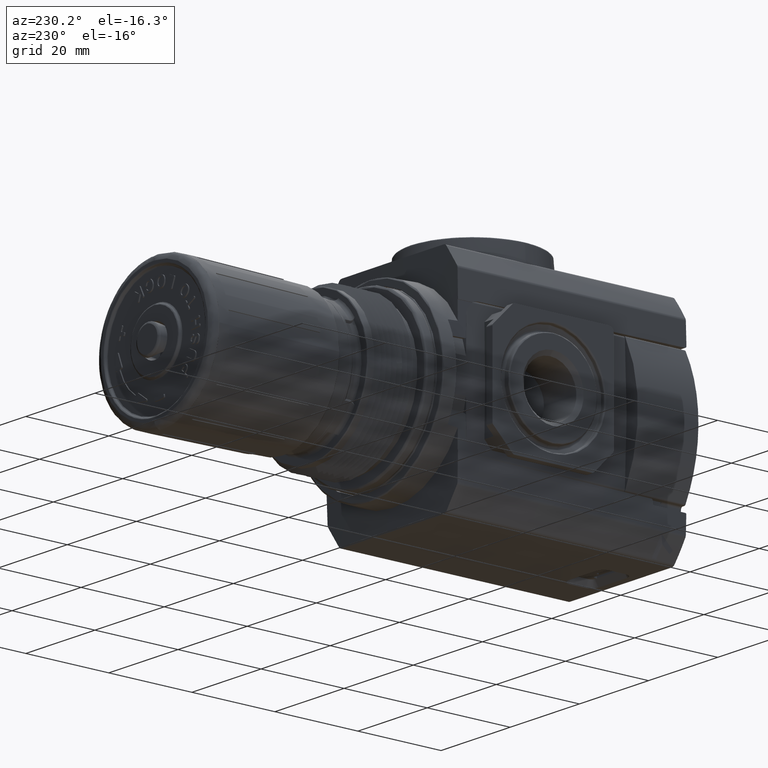
[diagram: clean part render]
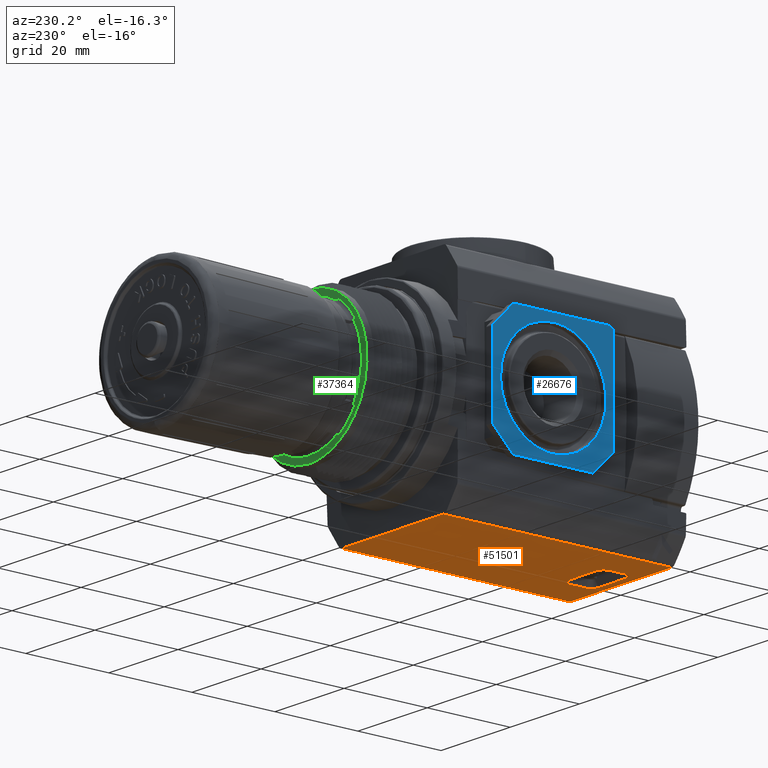
[diagram: same view with three faces highlighted in distinct colors, each labeled with its STEP entity id]
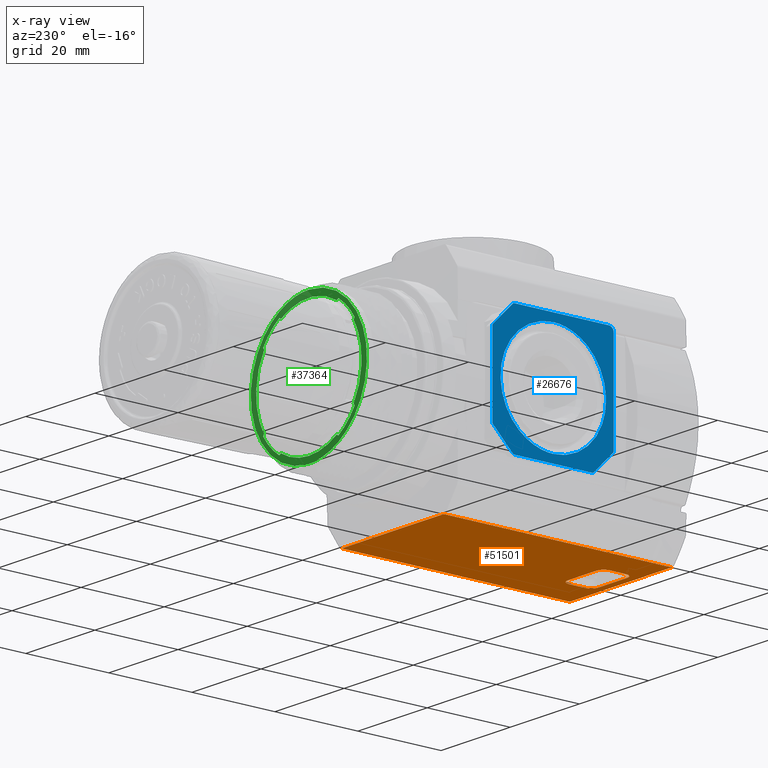
[diagram: x-ray of the same camera — body ghosted, the three highlighted faces saturated]
A machine part, auxiliary view with three faces highlighted in distinct colors.
The next image is the same camera in x-ray (body ghosted, the three faces saturated) — at least one of them is partly hidden behind the body in this view.
Their STEP definitions:

[orange] entity #51501 — the highlighted planar face has unit normal (0, -0, 1).
#767 = AXIS2_PLACEMENT_3D ( 'NONE', #25244, #48283, #59220 ) ;
#1099 = CARTESIAN_POINT ( 'NONE',  ( -4.536365133433958033E-22, 2.166187728789961131, -1.023622047244094668 ) ) ;
#1250 = ORIENTED_EDGE ( 'NONE', *, *, #10930, .F. ) ;
#2987 = DIRECTION ( 'NONE',  ( 0.000000000000000000, 1.000000000000000000, 0.000000000000000000 ) ) ;
#3220 = DIRECTION ( 'NONE',  ( -0.000000000000000000, -0.000000000000000000, -1.000000000000000000 ) ) ;
#3460 = CARTESIAN_POINT ( 'NONE',  ( -0.5797240154327559791, 2.184055118110236560, -1.023622047244094668 ) ) ;
#3494 = DIRECTION ( 'NONE',  ( -1.000000000000000000, -0.000000000000000000, 0.000000000000000000 ) ) ;
#5350 = VERTEX_POINT ( 'NONE', #33590 ) ;
#5397 = VECTOR ( 'NONE', #21573, 39.37007874015748143 ) ;
#5697 = CARTESIAN_POINT ( 'NONE',  ( -0.1625984251968503880, 0.2984251968503937036, -1.023622047244506339 ) ) ;
#7437 = EDGE_LOOP ( 'NONE', ( #74311, #17707, #43204, #54619, #1250, #12475, #38700, #10099 ) ) ;
#7952 = DIRECTION ( 'NONE',  ( -0.000000000000000000, -0.000000000000000000, -1.000000000000000000 ) ) ;
#8656 = LINE ( 'NONE', #37699, #29735 ) ;
#9007 = CARTESIAN_POINT ( 'NONE',  ( -0.5797240154326707140, 2.163521238853242323, -1.023622047244094668 ) ) ;
#9138 = LINE ( 'NONE', #3460, #72075 ) ;
#10099 = ORIENTED_EDGE ( 'NONE', *, *, #19370, .F. ) ;
#10404 = DIRECTION ( 'NONE',  ( 0.000000000000000000, 1.000000000000000000, 0.000000000000000000 ) ) ;
#10930 = EDGE_CURVE ( 'NONE', #40818, #39581, #37207, .T. ) ;
#12475 = ORIENTED_EDGE ( 'NONE', *, *, #37072, .F. ) ;
#14875 = ORIENTED_EDGE ( 'NONE', *, *, #49255, .F. ) ;
#15080 = ORIENTED_EDGE ( 'NONE', *, *, #68286, .F. ) ;
#15252 = DIRECTION ( 'NONE',  ( -0.000000000000000000, -0.000000000000000000, -1.000000000000000000 ) ) ;
#15552 = CARTESIAN_POINT ( 'NONE',  ( -0.5797240154326707140, 2.163521238853242323, -1.023622047244094668 ) ) ;
#17120 = CARTESIAN_POINT ( 'NONE',  ( 0.5797240334615002544, 2.163521238698160598, -1.023622047244092448 ) ) ;
#17578 = VERTEX_POINT ( 'NONE', #59454 ) ;
#17707 = ORIENTED_EDGE ( 'NONE', *, *, #67162, .F. ) ;
#18257 = VERTEX_POINT ( 'NONE', #15552 ) ;
#18412 = AXIS2_PLACEMENT_3D ( 'NONE', #69868, #7952, #71735 ) ;
#19217 = CARTESIAN_POINT ( 'NONE',  ( -4.536365133433958033E-22, 2.166187728789961131, -1.023622047244094668 ) ) ;
#19370 = EDGE_CURVE ( 'NONE', #5350, #31072, #72817, .T. ) ;
#20430 = DIRECTION ( 'NONE',  ( -0.000000000000000000, -1.000000000000000000, -0.000000000000000000 ) ) ;
#20995 = CIRCLE ( 'NONE', #54751, 0.06834745684339094129 ) ;
#21573 = DIRECTION ( 'NONE',  ( 1.000000000000000000, 0.000000000000000000, -0.000000000000000000 ) ) ;
#22661 = B_SPLINE_CURVE_WITH_KNOTS ( 'NONE', 3,
 ( #1099, #38053, #59591, #9007 ),
 .UNSPECIFIED., .F., .F.,
 ( 4, 4 ),
 ( 0.01472499044993116554, 0.02944998044191193820 ),
 .UNSPECIFIED. ) ;
#23289 = VECTOR ( 'NONE', #3494, 39.37007874015748143 ) ;
#23806 = EDGE_CURVE ( 'NONE', #31072, #29846, #56271, .T. ) ;
#24604 = PLANE ( 'NONE',  #37440 ) ;
#24858 = CIRCLE ( 'NONE', #767, 0.06834745684311378799 ) ;
#25244 = CARTESIAN_POINT ( 'NONE',  ( -0.1625984251968503880, 0.1448818897637795255, -1.023622047244506339 ) ) ;
#25592 = CARTESIAN_POINT ( 'NONE',  ( 0.2309458820396433909, 0.1448818897637795255, -1.023622047244506339 ) ) ;
#26841 = AXIS2_PLACEMENT_3D ( 'NONE', #5697, #15252, #50346 ) ;
#27304 = EDGE_CURVE ( 'NONE', #69303, #27523, #53479, .T. ) ;
#27523 = VERTEX_POINT ( 'NONE', #64740 ) ;
#27569 = CARTESIAN_POINT ( 'NONE',  ( 0.5797240154327559791, 0.3667726536923008873, -1.023622047244094668 ) ) ;
#28218 = CARTESIAN_POINT ( 'NONE',  ( -0.1625984251968503880, 0.07653443292196973613, -1.023622047244403310 ) ) ;
#28817 = CARTESIAN_POINT ( 'NONE',  ( -0.5797240154327559791, 0.000000000000000000, -1.023622047244094668 ) ) ;
#29735 = VECTOR ( 'NONE', #2987, 39.37007874015748143 ) ;
#29846 = VERTEX_POINT ( 'NONE', #34645 ) ;
#31072 = VERTEX_POINT ( 'NONE', #50001 ) ;
#31366 = ORIENTED_EDGE ( 'NONE', *, *, #27304, .F. ) ;
#31807 = LINE ( 'NONE', #55204, #23289 ) ;
#33590 = CARTESIAN_POINT ( 'NONE',  ( -0.2309458820396434464, 0.2984251968503937036, -1.023622047244506339 ) ) ;
#33642 = ORIENTED_EDGE ( 'NONE', *, *, #46178, .F. ) ;
#34645 = CARTESIAN_POINT ( 'NONE',  ( 0.1625984251968503880, 0.3667726536921340208, -1.023622047244403310 ) ) ;
#35555 = LINE ( 'NONE', #69565, #59794 ) ;
#37072 = EDGE_CURVE ( 'NONE', #29846, #40818, #41299, .T. ) ;
#37207 = LINE ( 'NONE', #60234, #73575 ) ;
#37440 = AXIS2_PLACEMENT_3D ( 'NONE', #43091, #48770, #71802 ) ;
#37545 = CARTESIAN_POINT ( 'NONE',  ( 0.1625984251968503880, 0.1448818897637795255, -1.023622047244506339 ) ) ;
#37699 = CARTESIAN_POINT ( 'NONE',  ( 0.5797240154327559791, 2.184055118110236560, -1.023622047244094668 ) ) ;
#38053 = CARTESIAN_POINT ( 'NONE',  ( -0.1932413384774380460, 2.166187728789961131, -1.023622047244094668 ) ) ;
#38065 = CARTESIAN_POINT ( 'NONE',  ( 0.3864826889744369387, 2.165183477000616197, -1.023622047244094668 ) ) ;
#38213 = CARTESIAN_POINT ( 'NONE',  ( 0.5797240154327559791, 0.000000000000000000, -1.023622047244094668 ) ) ;
#38700 = ORIENTED_EDGE ( 'NONE', *, *, #23806, .F. ) ;
#39581 = VERTEX_POINT ( 'NONE', #25592 ) ;
#40818 = VERTEX_POINT ( 'NONE', #51222 ) ;
#41299 = CIRCLE ( 'NONE', #18412, 0.06834745684339094129 ) ;
#42125 = EDGE_CURVE ( 'NONE', #39581, #47500, #20995, .T. ) ;
#42697 = EDGE_CURVE ( 'NONE', #62710, #51176, #43869, .T. ) ;
#43091 = CARTESIAN_POINT ( 'NONE',  ( 0.5797240154327559791, 2.184055118110236560, -1.023622047244094668 ) ) ;
#43204 = ORIENTED_EDGE ( 'NONE', *, *, #62823, .F. ) ;
#43869 = LINE ( 'NONE', #38213, #5397 ) ;
#43920 = CARTESIAN_POINT ( 'NONE',  ( 0.5797240154327559791, 0.000000000000000000, -1.023622047244094668 ) ) ;
#44024 = CARTESIAN_POINT ( 'NONE',  ( 0.1625984251968505268, 0.07653443292175358958, -1.023622047244300504 ) ) ;
#46178 = EDGE_CURVE ( 'NONE', #51176, #69303, #8656, .T. ) ;
#47500 = VERTEX_POINT ( 'NONE', #44024 ) ;
#47925 = CARTESIAN_POINT ( 'NONE',  ( 0.1932413444872855546, 2.166187728789961131, -1.023622047244094668 ) ) ;
#48283 = DIRECTION ( 'NONE',  ( -0.000000000000000000, -0.000000000000000000, -1.000000000000000000 ) ) ;
#48770 = DIRECTION ( 'NONE',  ( 0.000000000000000000, -0.000000000000000000, 1.000000000000000000 ) ) ;
#49255 = EDGE_CURVE ( 'NONE', #27523, #18257, #22661, .T. ) ;
#50001 = CARTESIAN_POINT ( 'NONE',  ( -0.1625984251968503325, 0.3667726536912481738, -1.023622047242165323 ) ) ;
#50346 = DIRECTION ( 'NONE',  ( -1.000000000000000000, 0.000000000000000000, 0.000000000000000000 ) ) ;
#51176 = VERTEX_POINT ( 'NONE', #43920 ) ;
#51222 = CARTESIAN_POINT ( 'NONE',  ( 0.2309458820388763378, 0.2984251968503937591, -1.023622047244300504 ) ) ;
#51501 = ADVANCED_FACE ( 'NONE', ( #54418, #54789 ), #24604, .F. ) ;
#53479 = B_SPLINE_CURVE_WITH_KNOTS ( 'NONE', 3,
 ( #61114, #38065, #47925, #19217 ),
 .UNSPECIFIED., .F., .F.,
 ( 4, 4 ),
 ( 0.000000000000000000, 0.01472499044993116554 ),
 .UNSPECIFIED. ) ;
#53490 = VECTOR ( 'NONE', #55885, 39.37007874015748143 ) ;
#54418 = FACE_OUTER_BOUND ( 'NONE', #56774, .T. ) ;
#54619 = ORIENTED_EDGE ( 'NONE', *, *, #42125, .F. ) ;
#54751 = AXIS2_PLACEMENT_3D ( 'NONE', #37545, #3220, #73400 ) ;
#54789 = FACE_BOUND ( 'NONE', #7437, .T. ) ;
#55204 = CARTESIAN_POINT ( 'NONE',  ( 0.5797240154327559791, 0.07653443292187232794, -1.023622047244094668 ) ) ;
#55885 = DIRECTION ( 'NONE',  ( 1.000000000000000000, 0.000000000000000000, -0.000000000000000000 ) ) ;
#56271 = LINE ( 'NONE', #27569, #53490 ) ;
#56774 = EDGE_LOOP ( 'NONE', ( #33642, #67367, #15080, #14875, #31366 ) ) ;
#59220 = DIRECTION ( 'NONE',  ( -1.000000000000000000, 0.000000000000000000, 0.000000000000000000 ) ) ;
#59454 = CARTESIAN_POINT ( 'NONE',  ( -0.2309458820388763378, 0.1448818897637794423, -1.023622047244300504 ) ) ;
#59591 = CARTESIAN_POINT ( 'NONE',  ( -0.3864826769549251084, 2.165183477064866135, -1.023622047244094668 ) ) ;
#59794 = VECTOR ( 'NONE', #10404, 39.37007874015748143 ) ;
#60234 = CARTESIAN_POINT ( 'NONE',  ( 0.2309458820387574884, 2.184055118110236560, -1.023622047244094668 ) ) ;
#61114 = CARTESIAN_POINT ( 'NONE',  ( 0.5797240334615002544, 2.163521238698160598, -1.023622047244092448 ) ) ;
#62710 = VERTEX_POINT ( 'NONE', #28817 ) ;
#62823 = EDGE_CURVE ( 'NONE', #47500, #66259, #31807, .T. ) ;
#64740 = CARTESIAN_POINT ( 'NONE',  ( -4.536365133433958033E-22, 2.166187728789961131, -1.023622047244094668 ) ) ;
#65559 = DIRECTION ( 'NONE',  ( -0.000000000000000000, -1.000000000000000000, -0.000000000000000000 ) ) ;
#66259 = VERTEX_POINT ( 'NONE', #28218 ) ;
#67162 = EDGE_CURVE ( 'NONE', #66259, #17578, #24858, .T. ) ;
#67367 = ORIENTED_EDGE ( 'NONE', *, *, #42697, .F. ) ;
#68286 = EDGE_CURVE ( 'NONE', #18257, #62710, #9138, .T. ) ;
#69303 = VERTEX_POINT ( 'NONE', #17120 ) ;
#69565 = CARTESIAN_POINT ( 'NONE',  ( -0.2309458820387575717, 2.184055118110236560, -1.023622047244094668 ) ) ;
#69868 = CARTESIAN_POINT ( 'NONE',  ( 0.1625984251968503880, 0.2984251968503937036, -1.023622047244506339 ) ) ;
#71735 = DIRECTION ( 'NONE',  ( -1.000000000000000000, 0.000000000000000000, 0.000000000000000000 ) ) ;
#71802 = DIRECTION ( 'NONE',  ( 1.000000000000000000, 0.000000000000000000, -0.000000000000000000 ) ) ;
#72075 = VECTOR ( 'NONE', #20430, 39.37007874015748143 ) ;
#72817 = CIRCLE ( 'NONE', #26841, 0.06834745684311378799 ) ;
#73400 = DIRECTION ( 'NONE',  ( -1.000000000000000000, 0.000000000000000000, 0.000000000000000000 ) ) ;
#73575 = VECTOR ( 'NONE', #65559, 39.37007874015748143 ) ;
#73657 = EDGE_CURVE ( 'NONE', #17578, #5350, #35555, .T. ) ;
#74311 = ORIENTED_EDGE ( 'NONE', *, *, #73657, .F. ) ;

[blue] entity #26676 — the highlighted planar face has unit normal (1, 0, 0).
#1070 = LINE ( 'NONE', #34663, #37755 ) ;
#1117 = LINE ( 'NONE', #74753, #36060 ) ;
#1285 = CARTESIAN_POINT ( 'NONE',  ( -0.9153543307086614567, 1.403543307086614345, 0.5003422999248759995 ) ) ;
#1593 = CARTESIAN_POINT ( 'NONE',  ( -0.9153543307086614567, 1.960629921259842368, -0.3678304416855693315 ) ) ;
#1975 = CIRCLE ( 'NONE', #30734, 0.04724409448818896184 ) ;
#3150 = CARTESIAN_POINT ( 'NONE',  ( -0.9153543307086614567, 1.980314960629921295, 0.3678304416855694980 ) ) ;
#3673 = EDGE_LOOP ( 'NONE', ( #57890, #20101 ) ) ;
#3802 = VECTOR ( 'NONE', #28281, 39.37007874015748143 ) ;
#4013 = CARTESIAN_POINT ( 'NONE',  ( -0.9153543307086614567, 1.773342252709188882, -0.5748031496062993018 ) ) ;
#4760 = CIRCLE ( 'NONE', #55351, 0.01968503937007875723 ) ;
#5060 = DIRECTION ( 'NONE',  ( 1.000000000000000000, -0.000000000000000000, -0.000000000000000000 ) ) ;
#6160 = CARTESIAN_POINT ( 'NONE',  ( -0.9153543307086614567, 1.773342252709192879, 0.5551181102362204856 ) ) ;
#6192 = DIRECTION ( 'NONE',  ( 1.000000000000000000, -0.000000000000000000, -0.000000000000000000 ) ) ;
#6844 = ORIENTED_EDGE ( 'NONE', *, *, #64889, .F. ) ;
#7099 = DIRECTION ( 'NONE',  ( 1.000000000000000000, -0.000000000000000000, -0.000000000000000000 ) ) ;
#7605 = EDGE_CURVE ( 'NONE', #47133, #58519, #1117, .T. ) ;
#7724 = CARTESIAN_POINT ( 'NONE',  ( -0.9153543307086614567, 0.8307086614173229133, 0.4685039370078740717 ) ) ;
#7928 = VERTEX_POINT ( 'NONE', #20702 ) ;
#8257 = CARTESIAN_POINT ( 'NONE',  ( -0.9153543307086615677, 0.4028587072375040545, 0.5003422999245552560 ) ) ;
#9478 = CIRCLE ( 'NONE', #31184, 0.01968503937007875723 ) ;
#9740 = DIRECTION ( 'NONE',  ( 1.000000000000000000, -0.000000000000000000, -0.000000000000000000 ) ) ;
#10073 = EDGE_CURVE ( 'NONE', #50521, #62458, #4760, .T. ) ;
#10882 = FACE_OUTER_BOUND ( 'NONE', #55032, .T. ) ;
#10912 = LINE ( 'NONE', #33935, #3802 ) ;
#11094 = EDGE_CURVE ( 'NONE', #60210, #15731, #14566, .T. ) ;
#11126 = CARTESIAN_POINT ( 'NONE',  ( -0.9153543307086614567, 1.403543307086614345, -0.5003422999245551450 ) ) ;
#11208 = DIRECTION ( 'NONE',  ( 0.000000000000000000, 0.000000000000000000, -1.000000000000000000 ) ) ;
#12234 = VERTEX_POINT ( 'NONE', #65692 ) ;
#12668 = CARTESIAN_POINT ( 'NONE',  ( -0.9153543307086614567, 0.8779527559055118058, 0.5748031496062991907 ) ) ;
#12701 = DIRECTION ( 'NONE',  ( 1.000000000000000000, -0.000000000000000000, -0.000000000000000000 ) ) ;
#13870 = AXIS2_PLACEMENT_3D ( 'NONE', #34598, #12701, #11208 ) ;
#14285 = CARTESIAN_POINT ( 'NONE',  ( -0.9153543307086614567, 1.403543307086614345, 0.5003422999248759995 ) ) ;
#14566 = LINE ( 'NONE', #37582, #66376 ) ;
#15490 = CARTESIAN_POINT ( 'NONE',  ( -0.9153543307086614567, 1.033744361464035366, -0.5748031496062993018 ) ) ;
#15731 = VERTEX_POINT ( 'NONE', #65310 ) ;
#16426 = ORIENTED_EDGE ( 'NONE', *, *, #48070, .F. ) ;
#17891 = CARTESIAN_POINT ( 'NONE',  ( -0.9153543307086614567, 0.8503937007874016185, -0.3717674495595846840 ) ) ;
#18349 = CARTESIAN_POINT ( 'NONE',  ( -0.9153543307086614567, 1.840551181102362266, -0.5157480314960630752 ) ) ;
#19591 = CARTESIAN_POINT ( 'NONE',  ( -0.9153543307086614567, 1.787261677535697979, 0.5690375350627273621 ) ) ;
#19599 = VECTOR ( 'NONE', #42261, 39.37007874015748143 ) ;
#20101 = ORIENTED_EDGE ( 'NONE', *, *, #33498, .F. ) ;
#20676 = CARTESIAN_POINT ( 'NONE',  ( -0.9153543307086614567, 1.403543307086614345, -0.5003422999245551450 ) ) ;
#20702 = CARTESIAN_POINT ( 'NONE',  ( -0.9153543307086614567, 0.8307086614173229133, 0.5275590551181102983 ) ) ;
#22204 = PLANE ( 'NONE',  #24989 ) ;
#22778 = VECTOR ( 'NONE', #41314, 39.37007874015748143 ) ;
#22959 = ORIENTED_EDGE ( 'NONE', *, *, #7605, .F. ) ;
#24370 = DIRECTION ( 'NONE',  ( 0.000000000000000000, -0.7071067811865490160, -0.7071067811865460184 ) ) ;
#24989 = AXIS2_PLACEMENT_3D ( 'NONE', #56558, #27874, #50907 ) ;
#25317 = DIRECTION ( 'NONE',  ( 1.000000000000000000, -0.000000000000000000, -0.000000000000000000 ) ) ;
#25572 = ORIENTED_EDGE ( 'NONE', *, *, #32215, .T. ) ;
#26676 = ADVANCED_FACE ( 'NONE', ( #10882, #73566 ), #22204, .F. ) ;
#27684 = AXIS2_PLACEMENT_3D ( 'NONE', #1593, #59328, #58955 ) ;
#27874 = DIRECTION ( 'NONE',  ( 1.000000000000000000, 0.000000000000000000, 0.000000000000000000 ) ) ;
#28081 = ORIENTED_EDGE ( 'NONE', *, *, #58285, .F. ) ;
#28281 = DIRECTION ( 'NONE',  ( 0.000000000000000000, -1.000000000000000000, -0.000000000000000000 ) ) ;
#28606 = LINE ( 'NONE', #7724, #22778 ) ;
#29214 = DIRECTION ( 'NONE',  ( 0.000000000000000000, 0.000000000000000000, -1.000000000000000000 ) ) ;
#29344 = AXIS2_PLACEMENT_3D ( 'NONE', #37267, #7099, #30882 ) ;
#29757 = VERTEX_POINT ( 'NONE', #66437 ) ;
#30022 = VERTEX_POINT ( 'NONE', #65976 ) ;
#30114 = CIRCLE ( 'NONE', #27684, 0.01968503937007875723 ) ;
#30533 = CARTESIAN_POINT ( 'NONE',  ( -0.9153543307086615677, 0.4028587072375040545, -0.5003422999245551450 ) ) ;
#30734 = AXIS2_PLACEMENT_3D ( 'NONE', #67141, #9740, #56895 ) ;
#30882 = DIRECTION ( 'NONE',  ( 0.000000000000000000, 0.000000000000000000, -1.000000000000000000 ) ) ;
#31048 = ORIENTED_EDGE ( 'NONE', *, *, #11094, .T. ) ;
#31184 = AXIS2_PLACEMENT_3D ( 'NONE', #6160, #5060, #40868 ) ;
#31645 = EDGE_CURVE ( 'NONE', #72366, #41938, #10912, .T. ) ;
#32215 = EDGE_CURVE ( 'NONE', #58090, #12234, #57605, .T. ) ;
#33498 = EDGE_CURVE ( 'NONE', #29757, #68838, #33668, .T. ) ;
#33668 =( BOUNDED_CURVE ( )  B_SPLINE_CURVE ( 3, ( #1285, #64334, #51514, #11126 ),
 .UNSPECIFIED., .F., .T. ) 
 B_SPLINE_CURVE_WITH_KNOTS ( ( 4, 4 ),
 ( 0.5000000000000000000, 1.000000000000000000 ),
 .UNSPECIFIED. ) 
 CURVE ( )  GEOMETRIC_REPRESENTATION_ITEM ( )  RATIONAL_B_SPLINE_CURVE ( ( 1.000000000000000000, 0.3333333333333333703, 0.3333333333333333703, 1.000000000000000000 ) ) 
 REPRESENTATION_ITEM ( '' )  );
#33935 = CARTESIAN_POINT ( 'NONE',  ( -0.9153543307086614567, 0.9432243333188387036, 0.5748031496062991907 ) ) ;
#34598 = CARTESIAN_POINT ( 'NONE',  ( -0.9153543307086614567, 1.960629921259842368, 0.3678304416855700532 ) ) ;
#34663 = CARTESIAN_POINT ( 'NONE',  ( -0.9153543307086614567, 0.8955587890369174353, -0.4447713874621141983 ) ) ;
#35864 = ORIENTED_EDGE ( 'NONE', *, *, #37428, .T. ) ;
#36060 = VECTOR ( 'NONE', #41119, 39.37007874015748143 ) ;
#36644 = CARTESIAN_POINT ( 'NONE',  ( -0.9153543307086614567, 1.033744361464035366, -0.5551181102362204856 ) ) ;
#37267 = CARTESIAN_POINT ( 'NONE',  ( -0.9153543307086614567, 1.773342252709188882, -0.5551181102362204856 ) ) ;
#37348 = ORIENTED_EDGE ( 'NONE', *, *, #65947, .F. ) ;
#37428 = EDGE_CURVE ( 'NONE', #50521, #71989, #1070, .T. ) ;
#37582 = CARTESIAN_POINT ( 'NONE',  ( -0.9153543307086614567, 1.911527825136311254, 0.4447713874621141983 ) ) ;
#37583 = EDGE_CURVE ( 'NONE', #46621, #12234, #38979, .T. ) ;
#37716 = CARTESIAN_POINT ( 'NONE',  ( -0.9153543307086614567, 0.9432243333188387036, -0.5748031496062993018 ) ) ;
#37755 = VECTOR ( 'NONE', #74697, 39.37007874015748854 ) ;
#37936 = CARTESIAN_POINT ( 'NONE',  ( -0.9153543307086614567, 1.974549346086349688, -0.3817498665120759860 ) ) ;
#38979 = CIRCLE ( 'NONE', #29344, 0.01968503937007875723 ) ;
#40868 = DIRECTION ( 'NONE',  ( 0.000000000000000000, 0.000000000000000000, -1.000000000000000000 ) ) ;
#41119 = DIRECTION ( 'NONE',  ( -0.000000000000000000, -0.000000000000000000, 1.000000000000000000 ) ) ;
#41314 = DIRECTION ( 'NONE',  ( 0.000000000000000000, 0.000000000000000000, -1.000000000000000000 ) ) ;
#41938 = VERTEX_POINT ( 'NONE', #12668 ) ;
#42055 = ORIENTED_EDGE ( 'NONE', *, *, #10073, .F. ) ;
#42261 = DIRECTION ( 'NONE',  ( -0.000000000000000000, 1.000000000000000000, 0.000000000000000000 ) ) ;
#42341 = CARTESIAN_POINT ( 'NONE',  ( -0.9153543307086614567, 0.8364742759608944089, -0.3856868743860913384 ) ) ;
#42470 = VECTOR ( 'NONE', #24370, 39.37007874015748143 ) ;
#43255 = CARTESIAN_POINT ( 'NONE',  ( -0.9153543307086614567, 1.019824936637530488, -0.5690375350627272510 ) ) ;
#45127 = CARTESIAN_POINT ( 'NONE',  ( -0.9153543307086614567, 1.403543307086614345, -0.5003422999245551450 ) ) ;
#45368 = ORIENTED_EDGE ( 'NONE', *, *, #31645, .F. ) ;
#46621 = VERTEX_POINT ( 'NONE', #4013 ) ;
#47133 = VERTEX_POINT ( 'NONE', #64561 ) ;
#47623 = AXIS2_PLACEMENT_3D ( 'NONE', #17891, #6192, #29214 ) ;
#48070 = EDGE_CURVE ( 'NONE', #60210, #72366, #9478, .T. ) ;
#48693 = LINE ( 'NONE', #37716, #19599 ) ;
#50521 = VERTEX_POINT ( 'NONE', #43255 ) ;
#50907 = DIRECTION ( 'NONE',  ( 0.000000000000000000, 0.000000000000000000, -1.000000000000000000 ) ) ;
#51498 = ORIENTED_EDGE ( 'NONE', *, *, #71853, .F. ) ;
#51514 = CARTESIAN_POINT ( 'NONE',  ( -0.9153543307086615677, 2.404227906935724413, -0.5003422999245551450 ) ) ;
#53441 = ORIENTED_EDGE ( 'NONE', *, *, #71390, .F. ) ;
#54975 = EDGE_CURVE ( 'NONE', #62458, #46621, #48693, .T. ) ;
#55032 = EDGE_LOOP ( 'NONE', ( #6844, #22959, #51498, #25572, #74140, #72195, #42055, #35864, #28081, #53441, #37348, #45368, #16426, #31048 ) ) ;
#55351 = AXIS2_PLACEMENT_3D ( 'NONE', #36644, #25317, #59676 ) ;
#56558 = CARTESIAN_POINT ( 'NONE',  ( -0.9153543307086614567, 0.9432243333188387036, 0.4685039370078740717 ) ) ;
#56895 = DIRECTION ( 'NONE',  ( 0.000000000000000000, 0.000000000000000000, -1.000000000000000000 ) ) ;
#57605 = LINE ( 'NONE', #18349, #42470 ) ;
#57890 = ORIENTED_EDGE ( 'NONE', *, *, #65831, .F. ) ;
#58090 = VERTEX_POINT ( 'NONE', #37936 ) ;
#58285 = EDGE_CURVE ( 'NONE', #30022, #71989, #58425, .T. ) ;
#58425 = CIRCLE ( 'NONE', #47623, 0.01968503937007875723 ) ;
#58519 = VERTEX_POINT ( 'NONE', #3150 ) ;
#58955 = DIRECTION ( 'NONE',  ( 0.000000000000000000, 0.000000000000000000, -1.000000000000000000 ) ) ;
#59328 = DIRECTION ( 'NONE',  ( 1.000000000000000000, -0.000000000000000000, -0.000000000000000000 ) ) ;
#59674 = CIRCLE ( 'NONE', #13870, 0.01968503937007875723 ) ;
#59676 = DIRECTION ( 'NONE',  ( 0.000000000000000000, 0.000000000000000000, -1.000000000000000000 ) ) ;
#60210 = VERTEX_POINT ( 'NONE', #19591 ) ;
#60621 = DIRECTION ( 'NONE',  ( 0.000000000000000000, 0.7071067811865479058, -0.7071067811865469066 ) ) ;
#62458 = VERTEX_POINT ( 'NONE', #15490 ) ;
#64334 = CARTESIAN_POINT ( 'NONE',  ( -0.9153543307086615677, 2.404227906935724413, 0.5003422999245551450 ) ) ;
#64561 = CARTESIAN_POINT ( 'NONE',  ( -0.9153543307086614567, 1.980314960629921295, -0.3678304416855692205 ) ) ;
#64889 = EDGE_CURVE ( 'NONE', #58519, #15731, #59674, .T. ) ;
#65310 = CARTESIAN_POINT ( 'NONE',  ( -0.9153543307086614567, 1.974549346086349466, 0.3817498665120760415 ) ) ;
#65692 = CARTESIAN_POINT ( 'NONE',  ( -0.9153543307086614567, 1.787261677535696869, -0.5690375350627282502 ) ) ;
#65831 = EDGE_CURVE ( 'NONE', #68838, #29757, #72916, .T. ) ;
#65947 = EDGE_CURVE ( 'NONE', #41938, #7928, #1975, .T. ) ;
#65976 = CARTESIAN_POINT ( 'NONE',  ( -0.9153543307086614567, 0.8307086614173229133, -0.3717674495595846840 ) ) ;
#66376 = VECTOR ( 'NONE', #60621, 39.37007874015748854 ) ;
#66437 = CARTESIAN_POINT ( 'NONE',  ( -0.9153543307086614567, 1.403543307086614345, 0.5003422999248759995 ) ) ;
#67141 = CARTESIAN_POINT ( 'NONE',  ( -0.9153543307086614567, 0.8779527559055118058, 0.5275590551181102983 ) ) ;
#68838 = VERTEX_POINT ( 'NONE', #45127 ) ;
#71390 = EDGE_CURVE ( 'NONE', #7928, #30022, #28606, .T. ) ;
#71706 = CARTESIAN_POINT ( 'NONE',  ( -0.9153543307086614567, 1.773342252709192879, 0.5748031496062991907 ) ) ;
#71853 = EDGE_CURVE ( 'NONE', #58090, #47133, #30114, .T. ) ;
#71989 = VERTEX_POINT ( 'NONE', #42341 ) ;
#72195 = ORIENTED_EDGE ( 'NONE', *, *, #54975, .F. ) ;
#72366 = VERTEX_POINT ( 'NONE', #71706 ) ;
#72916 =( BOUNDED_CURVE ( )  B_SPLINE_CURVE ( 3, ( #20676, #30533, #8257, #14285 ),
 .UNSPECIFIED., .F., .F. ) 
 B_SPLINE_CURVE_WITH_KNOTS ( ( 4, 4 ),
 ( 0.000000000000000000, 0.5000000000000000000 ),
 .UNSPECIFIED. ) 
 CURVE ( )  GEOMETRIC_REPRESENTATION_ITEM ( )  RATIONAL_B_SPLINE_CURVE ( ( 1.000000000000000000, 0.3333333333333333703, 0.3333333333333333703, 1.000000000000000000 ) ) 
 REPRESENTATION_ITEM ( '' )  );
#73566 = FACE_BOUND ( 'NONE', #3673, .T. ) ;
#74140 = ORIENTED_EDGE ( 'NONE', *, *, #37583, .F. ) ;
#74697 = DIRECTION ( 'NONE',  ( 0.000000000000000000, -0.7071067811865479058, 0.7071067811865469066 ) ) ;
#74753 = CARTESIAN_POINT ( 'NONE',  ( -0.9153543307086614567, 1.980314960629921295, 0.4685039370078740717 ) ) ;

[green] entity #37364 — the highlighted planar face has unit normal (0, -1, 0).
#146 = ORIENTED_EDGE ( 'NONE', *, *, #12995, .F. ) ;
#1128 = VERTEX_POINT ( 'NONE', #7387 ) ;
#1395 = EDGE_CURVE ( 'NONE', #37870, #26599, #48318, .T. ) ;
#1402 = ORIENTED_EDGE ( 'NONE', *, *, #63682, .T. ) ;
#1658 = CARTESIAN_POINT ( 'NONE',  ( -1.322834645669291209, 2.958661417322835163, -0.6614173228346458266 ) ) ;
#2011 = VERTEX_POINT ( 'NONE', #15113 ) ;
#2162 =( BOUNDED_CURVE ( )  B_SPLINE_CURVE ( 3, ( #66204, #25054, #1658, #49207 ),
 .UNSPECIFIED., .F., .F. ) 
 B_SPLINE_CURVE_WITH_KNOTS ( ( 4, 4 ),
 ( 0.5000000000000000000, 1.000000000000000000 ),
 .UNSPECIFIED. ) 
 CURVE ( )  GEOMETRIC_REPRESENTATION_ITEM ( )  RATIONAL_B_SPLINE_CURVE ( ( 1.000000000000000000, 0.3333333333333333703, 0.3333333333333333703, 1.000000000000000000 ) ) 
 REPRESENTATION_ITEM ( '' )  );
#2236 = EDGE_CURVE ( 'NONE', #50492, #54733, #69636, .T. ) ;
#2277 = CARTESIAN_POINT ( 'NONE',  ( 0.1176456092989489749, 2.958661417322834719, 0.6340300183013050095 ) ) ;
#2480 = CARTESIAN_POINT ( 'NONE',  ( -0.3173756663744707884, 2.958661417322834719, -0.5096521189385475603 ) ) ;
#2655 = CARTESIAN_POINT ( 'NONE',  ( 0.3173756663744705664, 2.958661417322834719, 0.5096521189385476713 ) ) ;
#3505 = CARTESIAN_POINT ( 'NONE',  ( 0.5207586201270506532, 2.958661417322834719, -0.3366126907272792845 ) ) ;
#3971 = LINE ( 'NONE', #61717, #36776 ) ;
#4635 = EDGE_CURVE ( 'NONE', #22028, #31276, #2162, .T. ) ;
#5246 = CARTESIAN_POINT ( 'NONE',  ( -0.3734812129738703246, 2.958661417322833831, 0.4969272095715503990 ) ) ;
#5429 = ORIENTED_EDGE ( 'NONE', *, *, #39005, .T. ) ;
#5435 = DIRECTION ( 'NONE',  ( 0.8660254037844388186, 0.000000000000000000, -0.4999999999999998335 ) ) ;
#5801 = LINE ( 'NONE', #6540, #39164 ) ;
#5907 = ORIENTED_EDGE ( 'NONE', *, *, #1395, .T. ) ;
#6237 = EDGE_CURVE ( 'NONE', #26599, #50448, #59312, .T. ) ;
#6540 = CARTESIAN_POINT ( 'NONE',  ( 0.4214352379098307289, 2.958661417322834719, -0.5697309405762440715 ) ) ;
#6557 = CARTESIAN_POINT ( 'NONE',  ( 0.3366126907272792845, 2.958661417322834719, 0.5207586201270507642 ) ) ;
#7026 = CARTESIAN_POINT ( 'NONE',  ( 0.4695027990307656940, 2.958661417322834719, -0.4074188214695477761 ) ) ;
#7387 = CARTESIAN_POINT ( 'NONE',  ( -0.5096521189385472272, 2.958661417322834719, -0.3173756663744709550 ) ) ;
#7838 = EDGE_CURVE ( 'NONE', #1128, #8311, #21073, .T. ) ;
#8240 = EDGE_CURVE ( 'NONE', #31276, #22028, #30593, .T. ) ;
#8311 = VERTEX_POINT ( 'NONE', #43957 ) ;
#9402 = CARTESIAN_POINT ( 'NONE',  ( -0.5697309405762440715, 2.958661417322834719, -0.4214352379098307289 ) ) ;
#10004 = DIRECTION ( 'NONE',  ( -0.4999999999999998335, 0.000000000000000000, 0.8660254037844388186 ) ) ;
#10518 = VECTOR ( 'NONE', #15987, 39.37007874015748143 ) ;
#11090 = CARTESIAN_POINT ( 'NONE',  ( -0.3264151925230109885, 2.958661417322834719, -6.993530863780512311E-17 ) ) ;
#11636 = CARTESIAN_POINT ( 'NONE',  ( -0.5207586201270506532, 2.958661417322834719, 0.3366126907272794511 ) ) ;
#11753 = CARTESIAN_POINT ( 'NONE',  ( -0.3734690910334539926, 2.958661417322834719, -0.4969350450615887538 ) ) ;
#12730 = CARTESIAN_POINT ( 'NONE',  ( 0.3173756663744708995, 2.958661417322834719, -0.5096521189385472272 ) ) ;
#12890 = EDGE_CURVE ( 'NONE', #63551, #67570, #35215, .T. ) ;
#12902 = EDGE_CURVE ( 'NONE', #50492, #51298, #5801, .T. ) ;
#12995 = EDGE_CURVE ( 'NONE', #22602, #45249, #40724, .T. ) ;
#13644 = DIRECTION ( 'NONE',  ( -0.8660254037844388186, 0.000000000000000000, -0.4999999999999998335 ) ) ;
#13698 = ORIENTED_EDGE ( 'NONE', *, *, #27788, .T. ) ;
#13703 = B_SPLINE_CURVE_WITH_KNOTS ( 'NONE', 3,
 ( #29366, #5246, #17681, #58411, #69764, #11636 ),
 .UNSPECIFIED., .F., .F.,
 ( 4, 2, 4 ),
 ( 0.000000000000000000, 0.5000000000000000000, 1.000000000000000000 ),
 .UNSPECIFIED. ) ;
#15071 = CARTESIAN_POINT ( 'NONE',  ( 0.3366126907272792845, 2.958661417322834719, 0.5207586201270507642 ) ) ;
#15102 = VECTOR ( 'NONE', #22766, 39.37007874015748854 ) ;
#15113 = CARTESIAN_POINT ( 'NONE',  ( -0.3173756663744707884, 2.958661417322834719, 0.5096521189385473383 ) ) ;
#15987 = DIRECTION ( 'NONE',  ( 0.4999999999999998335, 0.000000000000000000, 0.8660254037844388186 ) ) ;
#16856 = CARTESIAN_POINT ( 'NONE',  ( -0.1129315387878510463, 2.958661417322835607, -0.6003937007874003973 ) ) ;
#17240 = CARTESIAN_POINT ( 'NONE',  ( -0.3173756663744707884, 2.958661417322834719, -0.5096521189385475603 ) ) ;
#17324 = FACE_BOUND ( 'NONE', #53100, .T. ) ;
#17681 = CARTESIAN_POINT ( 'NONE',  ( -0.4074209650389106763, 2.958661417322835163, 0.4695049426007795179 ) ) ;
#17795 = CARTESIAN_POINT ( 'NONE',  ( -0.4074188214693494903, 2.958661417322834719, -0.4695027990308936472 ) ) ;
#18292 = CARTESIAN_POINT ( 'NONE',  ( 0.5096521189385477824, 2.958661417322834719, -0.3173756663744705664 ) ) ;
#18663 = CARTESIAN_POINT ( 'NONE',  ( -0.3366126907272794511, 2.958661417322834719, -0.5207586201270506532 ) ) ;
#18722 = EDGE_LOOP ( 'NONE', ( #61390, #26060 ) ) ;
#19582 = VECTOR ( 'NONE', #13644, 39.37007874015748143 ) ;
#19635 = CARTESIAN_POINT ( 'NONE',  ( -0.3173756663744707884, 2.958661417322834719, 0.5096521189385473383 ) ) ;
#20197 = CARTESIAN_POINT ( 'NONE',  ( 1.087963302071095960E-16, 2.958661417322834719, 0.6614173228346458266 ) ) ;
#21073 = LINE ( 'NONE', #9402, #21607 ) ;
#21607 = VECTOR ( 'NONE', #26746, 39.37007874015748143 ) ;
#22028 = VERTEX_POINT ( 'NONE', #73182 ) ;
#22429 = CARTESIAN_POINT ( 'NONE',  ( 0.4074188214689540288, 2.958661417322834719, 0.4695027990311493316 ) ) ;
#22543 = VECTOR ( 'NONE', #44286, 39.37007874015748854 ) ;
#22602 = VERTEX_POINT ( 'NONE', #65111 ) ;
#22766 = DIRECTION ( 'NONE',  ( 0.4999999999999998335, 0.000000000000000000, -0.8660254037844385966 ) ) ;
#23222 = VERTEX_POINT ( 'NONE', #18663 ) ;
#23602 = ORIENTED_EDGE ( 'NONE', *, *, #12902, .T. ) ;
#23734 =( BOUNDED_CURVE ( )  B_SPLINE_CURVE ( 3, ( #68580, #16856, #39867, #17240 ),
 .UNSPECIFIED., .F., .F. ) 
 B_SPLINE_CURVE_WITH_KNOTS ( ( 4, 4 ),
 ( 0.5000000000000000000, 1.000000000000000000 ),
 .UNSPECIFIED. ) 
 CURVE ( )  GEOMETRIC_REPRESENTATION_ITEM ( )  RATIONAL_B_SPLINE_CURVE ( ( 1.000000000000000000, 0.9743157739629264569, 0.9743157739629264569, 1.000000000000000000 ) ) 
 REPRESENTATION_ITEM ( '' )  );
#23863 = CARTESIAN_POINT ( 'NONE',  ( 0.3366126907272796731, 2.958661417322834719, -0.5207586201270502091 ) ) ;
#23979 = ORIENTED_EDGE ( 'NONE', *, *, #58097, .T. ) ;
#24184 = CARTESIAN_POINT ( 'NONE',  ( -0.5207586201270502091, 2.958661417322834719, -0.3366126907272796731 ) ) ;
#24437 = EDGE_CURVE ( 'NONE', #2011, #41581, #25443, .T. ) ;
#25025 = CARTESIAN_POINT ( 'NONE',  ( 0.5096521189385477824, 2.958661417322834719, -0.3173756663744705664 ) ) ;
#25054 = CARTESIAN_POINT ( 'NONE',  ( -1.322834645669291209, 2.958661417322835163, 0.6614173228346459377 ) ) ;
#25113 = CARTESIAN_POINT ( 'NONE',  ( 1.322834645669291209, 2.958661417322835163, 0.6614173228346456046 ) ) ;
#25443 = LINE ( 'NONE', #42805, #57204 ) ;
#26060 = ORIENTED_EDGE ( 'NONE', *, *, #4635, .F. ) ;
#26599 = VERTEX_POINT ( 'NONE', #15071 ) ;
#26746 = DIRECTION ( 'NONE',  ( -0.4999999999999998335, 0.000000000000000000, -0.8660254037844388186 ) ) ;
#26929 = LINE ( 'NONE', #72999, #22543 ) ;
#27438 = CARTESIAN_POINT ( 'NONE',  ( -0.5207586201270506532, 2.958661417322834719, 0.3366126907272794511 ) ) ;
#27668 = LINE ( 'NONE', #67720, #10518 ) ;
#27788 = EDGE_CURVE ( 'NONE', #23222, #39856, #26929, .T. ) ;
#28252 = B_SPLINE_CURVE_WITH_KNOTS ( 'NONE', 3,
 ( #31438, #43506, #37846, #7026, #32554, #3505 ),
 .UNSPECIFIED., .F., .F.,
 ( 4, 2, 4 ),
 ( 0.000000000000000000, 0.5000000000000000000, 1.000000000000000000 ),
 .UNSPECIFIED. ) ;
#28712 = CARTESIAN_POINT ( 'NONE',  ( 0.000000000000000000, 2.958661417322834719, -0.6003937007874007303 ) ) ;
#29366 = CARTESIAN_POINT ( 'NONE',  ( -0.3366126907272795066, 2.958661417322834719, 0.5207586201270503201 ) ) ;
#29380 = DIRECTION ( 'NONE',  ( 0.000000000000000000, -0.000000000000000000, -1.000000000000000000 ) ) ;
#30537 = AXIS2_PLACEMENT_3D ( 'NONE', #69778, #34293, #29380 ) ;
#30593 =( BOUNDED_CURVE ( )  B_SPLINE_CURVE ( 3, ( #59840, #31521, #25113, #20197 ),
 .UNSPECIFIED., .F., .T. ) 
 B_SPLINE_CURVE_WITH_KNOTS ( ( 4, 4 ),
 ( 0.000000000000000000, 0.5000000000000000000 ),
 .UNSPECIFIED. ) 
 CURVE ( )  GEOMETRIC_REPRESENTATION_ITEM ( )  RATIONAL_B_SPLINE_CURVE ( ( 1.000000000000000000, 0.3333333333333333703, 0.3333333333333333703, 1.000000000000000000 ) ) 
 REPRESENTATION_ITEM ( '' )  );
#30985 = ORIENTED_EDGE ( 'NONE', *, *, #12890, .T. ) ;
#31062 = CARTESIAN_POINT ( 'NONE',  ( 0.5096521189385472272, 2.958661417322834719, 0.3173756663744708439 ) ) ;
#31276 = VERTEX_POINT ( 'NONE', #40889 ) ;
#31438 = CARTESIAN_POINT ( 'NONE',  ( 0.3366126907272796731, 2.958661417322834719, -0.5207586201270502091 ) ) ;
#31521 = CARTESIAN_POINT ( 'NONE',  ( 1.322834645669291209, 2.958661417322835163, -0.6614173228346458266 ) ) ;
#31790 = ORIENTED_EDGE ( 'NONE', *, *, #36271, .T. ) ;
#32348 = B_SPLINE_CURVE_WITH_KNOTS ( 'NONE', 3,
 ( #24184, #35509, #47602, #17795, #11753, #58912 ),
 .UNSPECIFIED., .F., .F.,
 ( 4, 2, 4 ),
 ( 0.000000000000000000, 0.5000000000000000000, 1.000000000000000000 ),
 .UNSPECIFIED. ) ;
#32554 = CARTESIAN_POINT ( 'NONE',  ( 0.4969350450614606896, 2.958661417322834719, -0.3734690910336521674 ) ) ;
#33573 = ORIENTED_EDGE ( 'NONE', *, *, #68006, .T. ) ;
#34114 = ORIENTED_EDGE ( 'NONE', *, *, #7838, .T. ) ;
#34127 = CARTESIAN_POINT ( 'NONE',  ( 0.4695049426009780813, 2.958661417322835163, 0.4074209650387824455 ) ) ;
#34293 = DIRECTION ( 'NONE',  ( 0.000000000000000000, -1.000000000000000000, 0.000000000000000000 ) ) ;
#34679 = ORIENTED_EDGE ( 'NONE', *, *, #63667, .F. ) ;
#35215 = LINE ( 'NONE', #11090, #15102 ) ;
#35509 = CARTESIAN_POINT ( 'NONE',  ( -0.4969272095716780746, 2.958661417322833831, -0.3734812129736726494 ) ) ;
#36079 =( BOUNDED_CURVE ( )  B_SPLINE_CURVE ( 3, ( #19635, #60393, #2277, #2655 ),
 .UNSPECIFIED., .F., .F. ) 
 B_SPLINE_CURVE_WITH_KNOTS ( ( 4, 4 ),
 ( 0.000000000000000000, 1.000000000000000000 ),
 .UNSPECIFIED. ) 
 CURVE ( )  GEOMETRIC_REPRESENTATION_ITEM ( )  RATIONAL_B_SPLINE_CURVE ( ( 1.000000000000000000, 0.8992421342530765305, 0.8992421342530765305, 1.000000000000000000 ) ) 
 REPRESENTATION_ITEM ( '' )  );
#36271 = EDGE_CURVE ( 'NONE', #41581, #63551, #13703, .T. ) ;
#36776 = VECTOR ( 'NONE', #10004, 39.37007874015748143 ) ;
#36831 = CARTESIAN_POINT ( 'NONE',  ( 0.2215122388222895700, 2.958661417322835607, -0.5693491516197413116 ) ) ;
#37098 = EDGE_CURVE ( 'NONE', #2011, #50448, #36079, .T. ) ;
#37364 = ADVANCED_FACE ( 'NONE', ( #17324, #41444 ), #69422, .F. ) ;
#37846 = CARTESIAN_POINT ( 'NONE',  ( 0.4074209650391661941, 2.958661417322835163, -0.4695049426003841675 ) ) ;
#37870 = VERTEX_POINT ( 'NONE', #69863 ) ;
#38346 = CARTESIAN_POINT ( 'NONE',  ( -0.5096521189385476713, 2.958661417322834719, 0.3173756663744708439 ) ) ;
#39005 = EDGE_CURVE ( 'NONE', #8311, #23222, #32348, .T. ) ;
#39164 = VECTOR ( 'NONE', #5435, 39.37007874015748143 ) ;
#39856 = VERTEX_POINT ( 'NONE', #2480 ) ;
#39867 = CARTESIAN_POINT ( 'NONE',  ( -0.2215122388222897087, 2.958661417322835607, -0.5693491516197413116 ) ) ;
#40724 =( BOUNDED_CURVE ( )  B_SPLINE_CURVE ( 3, ( #31062, #58626, #66176, #25025 ),
 .UNSPECIFIED., .F., .T. ) 
 B_SPLINE_CURVE_WITH_KNOTS ( ( 4, 4 ),
 ( 0.000000000000000000, 1.000000000000000000 ),
 .UNSPECIFIED. ) 
 CURVE ( )  GEOMETRIC_REPRESENTATION_ITEM ( )  RATIONAL_B_SPLINE_CURVE ( ( 1.000000000000000000, 0.8992421342530765305, 0.8992421342530765305, 1.000000000000000000 ) ) 
 REPRESENTATION_ITEM ( '' )  );
#40889 = CARTESIAN_POINT ( 'NONE',  ( 0.000000000000000000, 2.958661417322834719, -0.6614173228346458266 ) ) ;
#40894 = CARTESIAN_POINT ( 'NONE',  ( 0.4969272095714225013, 2.958661417322833831, 0.3734812129740681663 ) ) ;
#41444 = FACE_OUTER_BOUND ( 'NONE', #18722, .T. ) ;
#41581 = VERTEX_POINT ( 'NONE', #57316 ) ;
#42805 = CARTESIAN_POINT ( 'NONE',  ( -0.4214352379098307289, 2.958661417322834719, 0.5697309405762440715 ) ) ;
#43506 = CARTESIAN_POINT ( 'NONE',  ( 0.3734812129734743080, 2.958661417322833831, -0.4969272095718065274 ) ) ;
#43957 = CARTESIAN_POINT ( 'NONE',  ( -0.5207586201270502091, 2.958661417322834719, -0.3366126907272796731 ) ) ;
#44286 = DIRECTION ( 'NONE',  ( 0.8660254037844385966, 0.000000000000000000, 0.4999999999999998335 ) ) ;
#45249 = VERTEX_POINT ( 'NONE', #18292 ) ;
#47602 = CARTESIAN_POINT ( 'NONE',  ( -0.4695049426005821758, 2.958661417322835163, -0.4074209650390381854 ) ) ;
#48318 = B_SPLINE_CURVE_WITH_KNOTS ( 'NONE', 3,
 ( #56782, #40894, #34127, #22429, #69247, #6557 ),
 .UNSPECIFIED., .F., .F.,
 ( 4, 2, 4 ),
 ( 0.000000000000000000, 0.5000000000000000000, 1.000000000000000000 ),
 .UNSPECIFIED. ) ;
#48376 = CARTESIAN_POINT ( 'NONE',  ( 0.000000000000000000, 2.958661417322834719, 0.3264151925230109885 ) ) ;
#48551 = CARTESIAN_POINT ( 'NONE',  ( 0.3173756663744708995, 2.958661417322834719, -0.5096521189385472272 ) ) ;
#49207 = CARTESIAN_POINT ( 'NONE',  ( 0.000000000000000000, 2.958661417322834719, -0.6614173228346458266 ) ) ;
#49982 = CARTESIAN_POINT ( 'NONE',  ( -0.6340300183013052315, 2.958661417322835163, -0.1176456092989487251 ) ) ;
#50448 = VERTEX_POINT ( 'NONE', #51983 ) ;
#50492 = VERTEX_POINT ( 'NONE', #12730 ) ;
#51298 = VERTEX_POINT ( 'NONE', #23863 ) ;
#51983 = CARTESIAN_POINT ( 'NONE',  ( 0.3173756663744705664, 2.958661417322834719, 0.5096521189385476713 ) ) ;
#52138 = ORIENTED_EDGE ( 'NONE', *, *, #62253, .F. ) ;
#53100 = EDGE_LOOP ( 'NONE', ( #146, #33573, #5907, #62613, #57436, #65637, #31790, #30985, #52138, #34114, #5429, #13698, #34679, #73765, #23602, #1402, #23979 ) ) ;
#53318 = VERTEX_POINT ( 'NONE', #65488 ) ;
#54733 = VERTEX_POINT ( 'NONE', #28712 ) ;
#55488 =( BOUNDED_CURVE ( )  B_SPLINE_CURVE ( 3, ( #60568, #49982, #67361, #60945 ),
 .UNSPECIFIED., .F., .F. ) 
 B_SPLINE_CURVE_WITH_KNOTS ( ( 4, 4 ),
 ( 0.000000000000000000, 1.000000000000000000 ),
 .UNSPECIFIED. ) 
 CURVE ( )  GEOMETRIC_REPRESENTATION_ITEM ( )  RATIONAL_B_SPLINE_CURVE ( ( 1.000000000000000000, 0.8992421342530763084, 0.8992421342530763084, 1.000000000000000000 ) ) 
 REPRESENTATION_ITEM ( '' )  );
#56782 = CARTESIAN_POINT ( 'NONE',  ( 0.5207586201270502091, 2.958661417322834719, 0.3366126907272797286 ) ) ;
#57204 = VECTOR ( 'NONE', #72626, 39.37007874015748143 ) ;
#57316 = CARTESIAN_POINT ( 'NONE',  ( -0.3366126907272795066, 2.958661417322834719, 0.5207586201270503201 ) ) ;
#57436 = ORIENTED_EDGE ( 'NONE', *, *, #37098, .F. ) ;
#58097 = EDGE_CURVE ( 'NONE', #53318, #45249, #3971, .T. ) ;
#58411 = CARTESIAN_POINT ( 'NONE',  ( -0.4695027990310211563, 2.958661417322834719, 0.4074188214691524812 ) ) ;
#58626 = CARTESIAN_POINT ( 'NONE',  ( 0.6340300183013051205, 2.958661417322834719, 0.1176456092989484337 ) ) ;
#58912 = CARTESIAN_POINT ( 'NONE',  ( -0.3366126907272794511, 2.958661417322834719, -0.5207586201270506532 ) ) ;
#59100 = CARTESIAN_POINT ( 'NONE',  ( 0.1129315387878510463, 2.958661417322835607, -0.6003937007874003973 ) ) ;
#59312 = LINE ( 'NONE', #48376, #19582 ) ;
#59840 = CARTESIAN_POINT ( 'NONE',  ( 0.000000000000000000, 2.958661417322834719, -0.6614173228346458266 ) ) ;
#60393 = CARTESIAN_POINT ( 'NONE',  ( -0.1176456092989482533, 2.958661417322834719, 0.6340300183013051205 ) ) ;
#60568 = CARTESIAN_POINT ( 'NONE',  ( -0.5096521189385472272, 2.958661417322834719, -0.3173756663744709550 ) ) ;
#60945 = CARTESIAN_POINT ( 'NONE',  ( -0.5096521189385476713, 2.958661417322834719, 0.3173756663744708439 ) ) ;
#61390 = ORIENTED_EDGE ( 'NONE', *, *, #8240, .F. ) ;
#61717 = CARTESIAN_POINT ( 'NONE',  ( 0.3264151925230109885, 2.958661417322834719, 0.000000000000000000 ) ) ;
#62253 = EDGE_CURVE ( 'NONE', #1128, #67570, #55488, .T. ) ;
#62613 = ORIENTED_EDGE ( 'NONE', *, *, #6237, .T. ) ;
#63551 = VERTEX_POINT ( 'NONE', #27438 ) ;
#63667 = EDGE_CURVE ( 'NONE', #54733, #39856, #23734, .T. ) ;
#63682 = EDGE_CURVE ( 'NONE', #51298, #53318, #28252, .T. ) ;
#65111 = CARTESIAN_POINT ( 'NONE',  ( 0.5096521189385472272, 2.958661417322834719, 0.3173756663744708439 ) ) ;
#65488 = CARTESIAN_POINT ( 'NONE',  ( 0.5207586201270506532, 2.958661417322834719, -0.3366126907272792845 ) ) ;
#65637 = ORIENTED_EDGE ( 'NONE', *, *, #24437, .T. ) ;
#66176 = CARTESIAN_POINT ( 'NONE',  ( 0.6340300183013050095, 2.958661417322834719, -0.1176456092989487806 ) ) ;
#66204 = CARTESIAN_POINT ( 'NONE',  ( 1.087963302071095960E-16, 2.958661417322834719, 0.6614173228346458266 ) ) ;
#67361 = CARTESIAN_POINT ( 'NONE',  ( -0.6340300183013052315, 2.958661417322835163, 0.1176456092989490027 ) ) ;
#67570 = VERTEX_POINT ( 'NONE', #38346 ) ;
#67720 = CARTESIAN_POINT ( 'NONE',  ( 0.5697309405762440715, 2.958661417322834719, 0.4214352379098307289 ) ) ;
#68006 = EDGE_CURVE ( 'NONE', #22602, #37870, #27668, .T. ) ;
#68580 = CARTESIAN_POINT ( 'NONE',  ( 0.000000000000000000, 2.958661417322834719, -0.6003937007874007303 ) ) ;
#69247 = CARTESIAN_POINT ( 'NONE',  ( 0.3734690910330584201, 2.958661417322834719, 0.4969350450618444937 ) ) ;
#69422 = PLANE ( 'NONE',  #30537 ) ;
#69636 =( BOUNDED_CURVE ( )  B_SPLINE_CURVE ( 3, ( #48551, #36831, #59100, #72310 ),
 .UNSPECIFIED., .F., .T. ) 
 B_SPLINE_CURVE_WITH_KNOTS ( ( 4, 4 ),
 ( 0.000000000000000000, 0.5000000000000000000 ),
 .UNSPECIFIED. ) 
 CURVE ( )  GEOMETRIC_REPRESENTATION_ITEM ( )  RATIONAL_B_SPLINE_CURVE ( ( 1.000000000000000000, 0.9743157739629264569, 0.9743157739629264569, 1.000000000000000000 ) ) 
 REPRESENTATION_ITEM ( '' )  );
#69764 = CARTESIAN_POINT ( 'NONE',  ( -0.4969350450617162074, 2.958661417322834719, 0.3734690910332568170 ) ) ;
#69778 = CARTESIAN_POINT ( 'NONE',  ( 0.6200787401574803237, 2.958661417322834719, 0.000000000000000000 ) ) ;
#69863 = CARTESIAN_POINT ( 'NONE',  ( 0.5207586201270502091, 2.958661417322834719, 0.3366126907272797286 ) ) ;
#72310 = CARTESIAN_POINT ( 'NONE',  ( 0.000000000000000000, 2.958661417322834719, -0.6003937007874007303 ) ) ;
#72626 = DIRECTION ( 'NONE',  ( -0.8660254037844388186, 0.000000000000000000, 0.4999999999999998335 ) ) ;
#72999 = CARTESIAN_POINT ( 'NONE',  ( 6.993530863780512311E-17, 2.958661417322834719, -0.3264151925230109885 ) ) ;
#73182 = CARTESIAN_POINT ( 'NONE',  ( 1.087963302071095960E-16, 2.958661417322834719, 0.6614173228346458266 ) ) ;
#73765 = ORIENTED_EDGE ( 'NONE', *, *, #2236, .F. ) ;